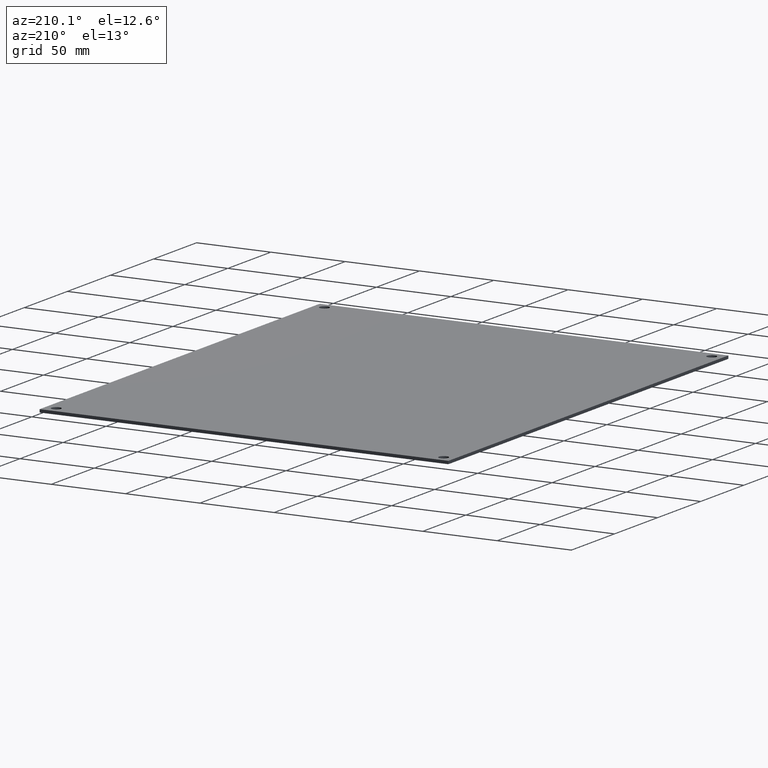
[diagram: clean part render]
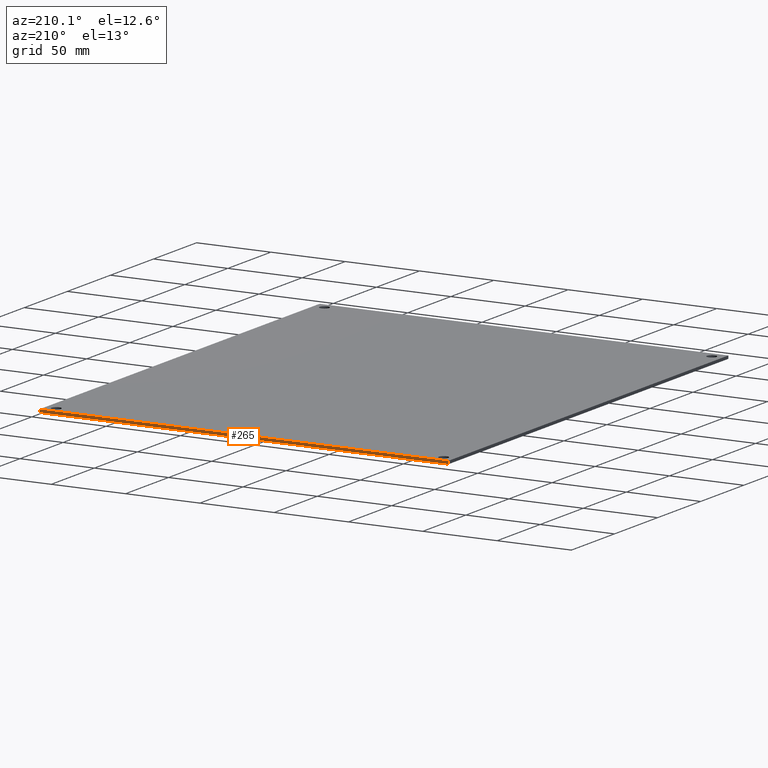
[diagram: same view with one face highlighted and labeled with its STEP entity id]
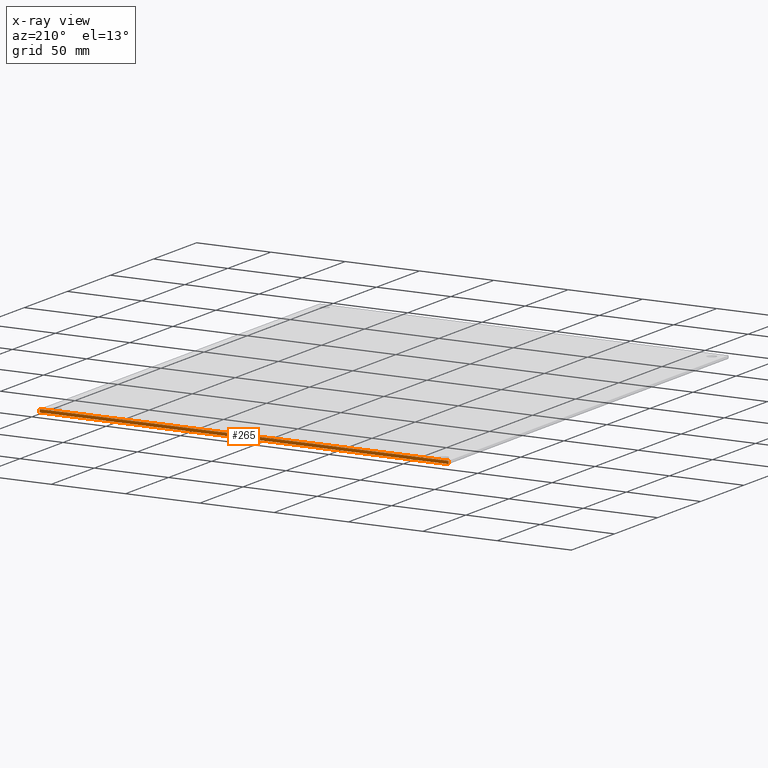
[diagram: x-ray of the same camera — body ghosted, the highlighted face saturated]
A machine part, auxiliary view. The second image highlights one B-rep face of the part: STEP entity #265.
The next image is the same camera in x-ray: the body ghosted, the highlighted face saturated — about 0% of this face is hidden behind the body in this view.
In plain terms, the highlighted planar face has unit normal (0, -1, 0).
Its self-contained STEP definition (entity closure, byte-faithful):
#74 = VERTEX_POINT ( 'NONE', #359 ) ;
#146 = EDGE_CURVE ( 'NONE', #74, #153, #437, .T. ) ;
#153 = VERTEX_POINT ( 'NONE', #428 ) ;
#236 = EDGE_CURVE ( 'NONE', #251, #247, #394, .T. ) ;
#240 = EDGE_CURVE ( 'NONE', #153, #247, #385, .T. ) ;
#247 = VERTEX_POINT ( 'NONE', #348 ) ;
#251 = VERTEX_POINT ( 'NONE', #342 ) ;
#262 = EDGE_CURVE ( 'NONE', #74, #251, #334, .T. ) ;
#265 = ADVANCED_FACE ( 'NONE', ( #327 ), #326, .F. ) ;
#266 = EDGE_LOOP ( 'NONE', ( #267, #268, #269, #270 ) ) ;
#267 = ORIENTED_EDGE ( 'NONE', *, *, #236, .T. ) ;
#268 = ORIENTED_EDGE ( 'NONE', *, *, #240, .F. ) ;
#269 = ORIENTED_EDGE ( 'NONE', *, *, #146, .F. ) ;
#270 = ORIENTED_EDGE ( 'NONE', *, *, #262, .T. ) ;
#325 = AXIS2_PLACEMENT_3D ( 'NONE', #488, #487, #486 ) ;
#326 = PLANE ( 'NONE',  #325 ) ;
#327 = FACE_OUTER_BOUND ( 'NONE', #266, .T. ) ;
#328 = DIRECTION ( 'NONE',  ( -0.0000000000000000000, -0.0000000000000000000, -1.000000000000000000 ) ) ;
#329 = VECTOR ( 'NONE', #328, 1000.000000000000000 ) ;
#330 = CARTESIAN_POINT ( 'NONE',  ( 137.5000000000000000, 162.5000000000000000, 2.000000000000000000 ) ) ;
#334 = LINE ( 'NONE', #330, #329 ) ;
#342 = CARTESIAN_POINT ( 'NONE',  ( 137.5000000000000000, 162.5000000000000000, 0.0000000000000000000 ) ) ;
#348 = CARTESIAN_POINT ( 'NONE',  ( -137.5000000000000000, 162.5000000000000000, 0.0000000000000000000 ) ) ;
#359 = CARTESIAN_POINT ( 'NONE',  ( 137.5000000000000000, 162.5000000000000000, 2.000000000000000000 ) ) ;
#382 = DIRECTION ( 'NONE',  ( -0.0000000000000000000, -0.0000000000000000000, -1.000000000000000000 ) ) ;
#383 = VECTOR ( 'NONE', #382, 1000.000000000000000 ) ;
#384 = CARTESIAN_POINT ( 'NONE',  ( -137.5000000000000000, 162.5000000000000000, 2.000000000000000000 ) ) ;
#385 = LINE ( 'NONE', #384, #383 ) ;
#391 = DIRECTION ( 'NONE',  ( -1.000000000000000000, -0.0000000000000000000, -0.0000000000000000000 ) ) ;
#392 = VECTOR ( 'NONE', #391, 1000.000000000000000 ) ;
#393 = CARTESIAN_POINT ( 'NONE',  ( -137.5000000000000000, 162.5000000000000000, 0.0000000000000000000 ) ) ;
#394 = LINE ( 'NONE', #393, #392 ) ;
#428 = CARTESIAN_POINT ( 'NONE',  ( -137.5000000000000000, 162.5000000000000000, 2.000000000000000000 ) ) ;
#434 = DIRECTION ( 'NONE',  ( -1.000000000000000000, -0.0000000000000000000, -0.0000000000000000000 ) ) ;
#435 = VECTOR ( 'NONE', #434, 1000.000000000000000 ) ;
#436 = CARTESIAN_POINT ( 'NONE',  ( -137.5000000000000000, 162.5000000000000000, 2.000000000000000000 ) ) ;
#437 = LINE ( 'NONE', #436, #435 ) ;
#486 = DIRECTION ( 'NONE',  ( 0.0000000000000000000, -0.0000000000000000000, -1.000000000000000000 ) ) ;
#487 = DIRECTION ( 'NONE',  ( 0.0000000000000000000, -1.000000000000000000, 0.0000000000000000000 ) ) ;
#488 = CARTESIAN_POINT ( 'NONE',  ( -137.5000000000000000, 162.5000000000000000, 2.000000000000000000 ) ) ;